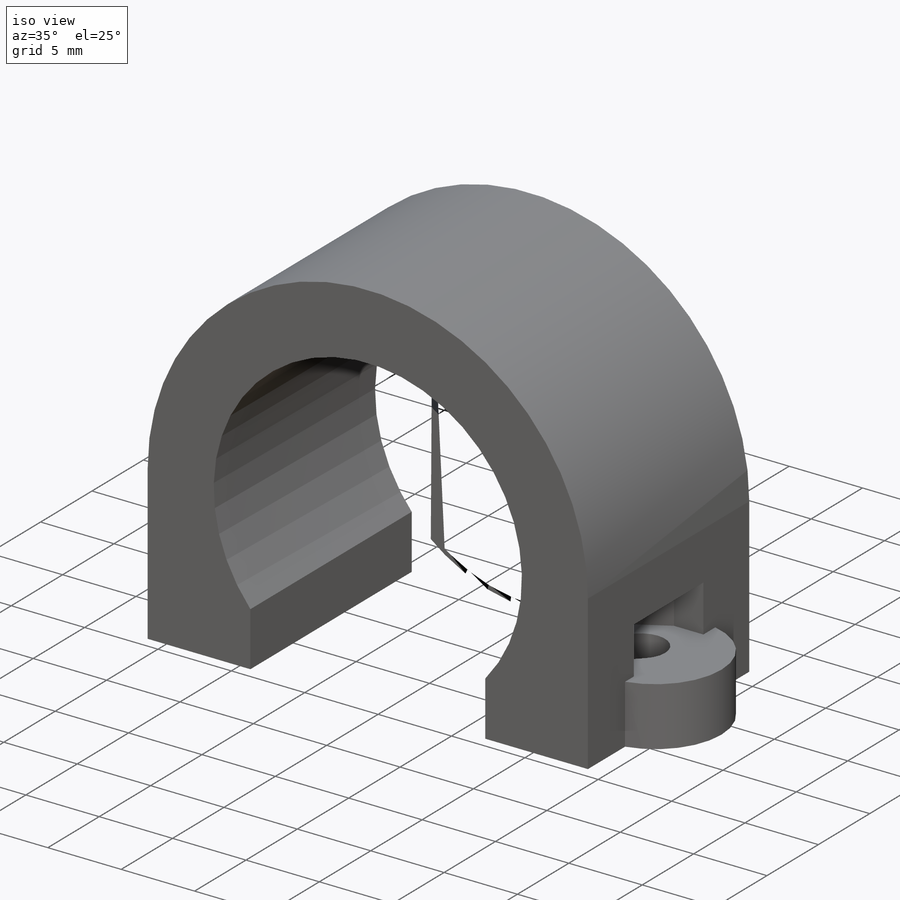
[diagram: iso view]
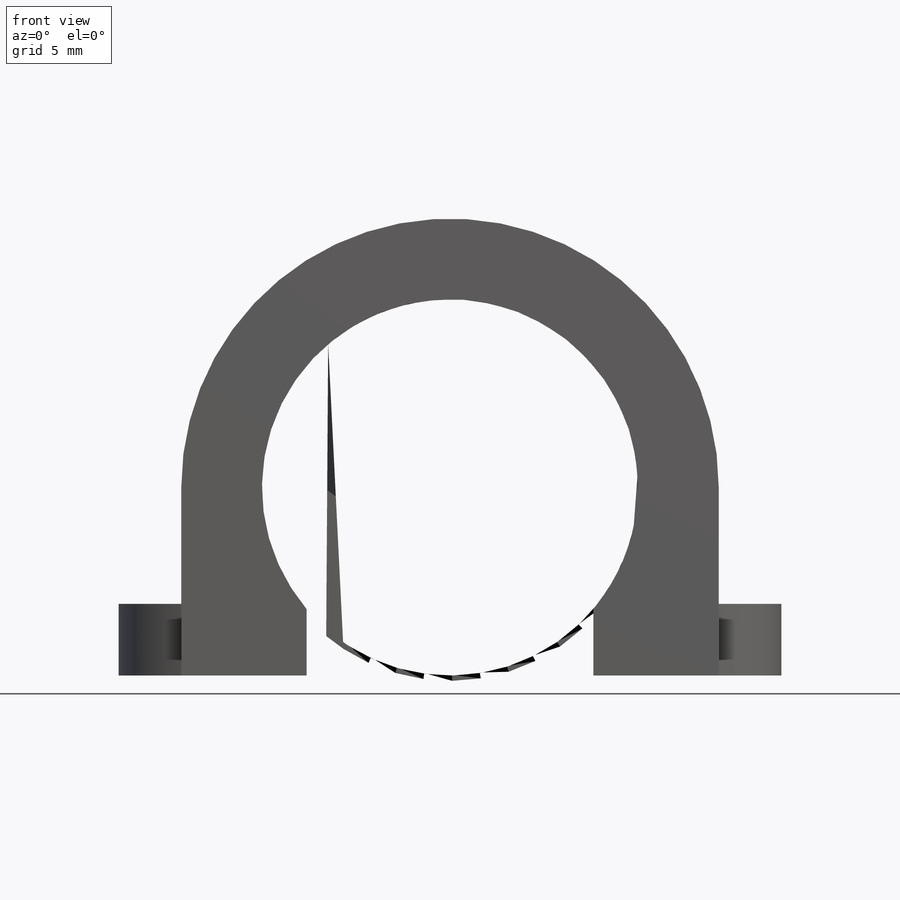
[diagram: front view]
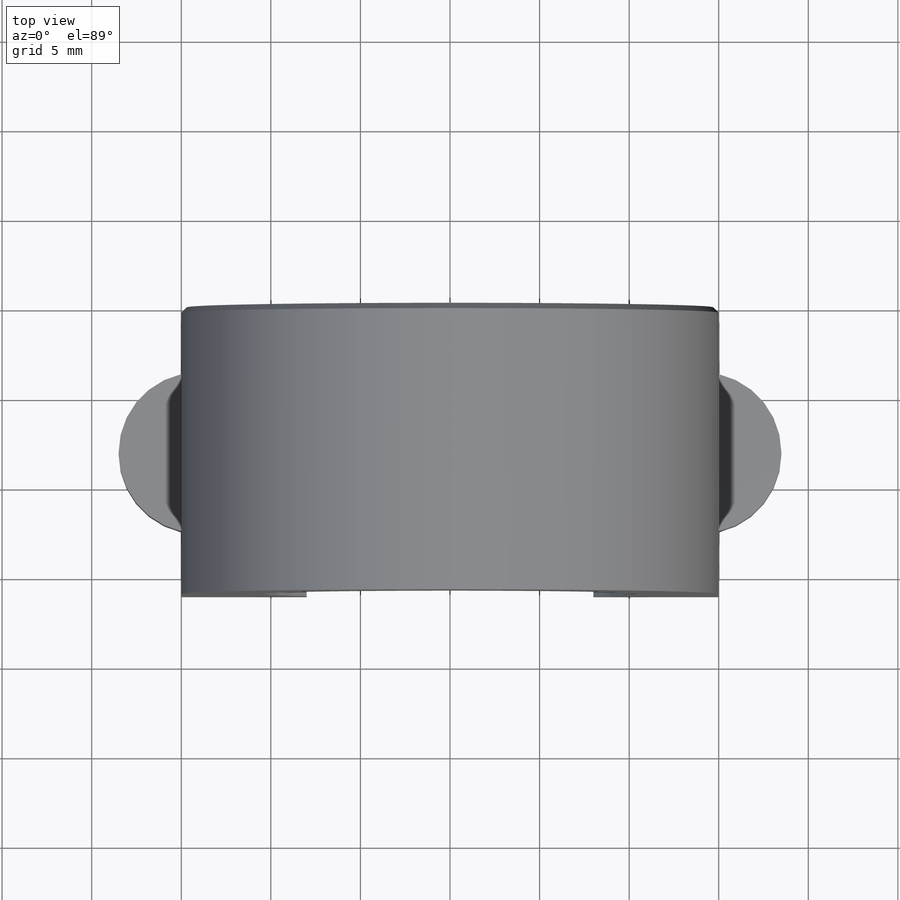
[diagram: top view]
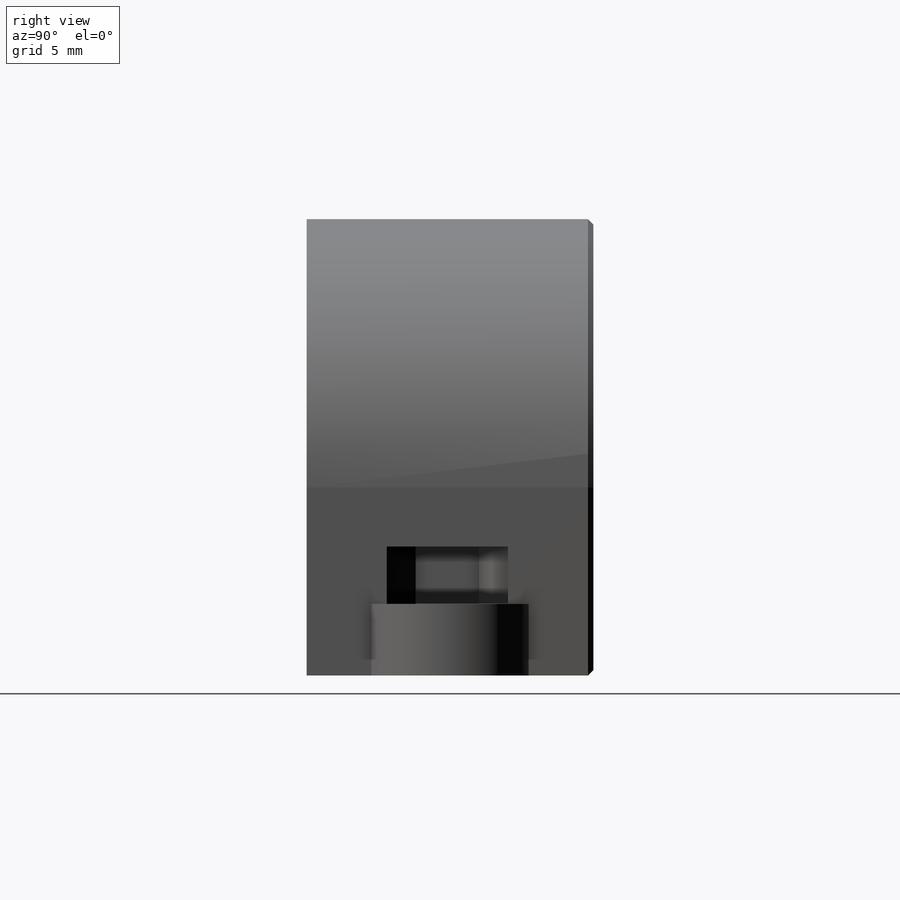
[diagram: right view]
SOLIDWORKS PART (.sldprt)
format: sldprt  version: not decoded by parser v0  size: 293,888 bytes
history: native  units: mm
features: sketch x5, cut_extrude x3, extrude x2, material x1, mirror x1, chamfer x1 (+13 scaffold rows collapsed)
feature tree (26):
  scaffold x13  (default folders/planes/origin — collapsed)
  material  "Custom Plastic"
  sketch  "Sketch1"  dims[c1.D1=16.0mm c1.D4=8.0mm c1.D5=2.0mm c1.D6=21.0mm c1.D7=21.0mm c2.D5=1.0mm c2.D3=8.0mm c2.D4=3.0mm c3.D5=~5.012648mm c3.D4=3.0mm c3.D7=4.5mm c3.D1=16.0mm c3.D2=6.0mm]
  extrude  "Boss-Extrude1"  Depth=16mm
  sketch  "Sketch4"  dims[D1=9.0mm D2=1.0mm]
  extrude  "Boss-Extrude2"  Depth=4mm
  sketch  "Sketch2"  dims[D1=3.3mm D2=1.0mm]
  cut_extrude  "Cut-Extrude1"  Depth=10mm
  sketch  "Sketch3"  dims[c1.D1=5.6mm c1.D2=~3.625501mm c2.D2=90.0deg c3.D2=~8.897688mm c4.D2=45.0deg c5.D2=0.3mm]
  cut_extrude  "Cut-Extrude2"  Depth=3.2mm
  mirror  "Mirror1"
  chamfer  "Chamfer1"  Distance=0.3mm Angle=45deg
  sketch  "Sketch5"  dims[D1=0.32mm D2=0.32mm]
  cut_extrude  "Cut-Extrude3"  [1 undecoded]
decode coverage: 10 of 12 modeling features carry decoded parameters
note: ~ marks probable driven/reference dimensions
note: 1 parameter value undecoded
note: suppression state not decoded; provenance and decode notes live in map.json
